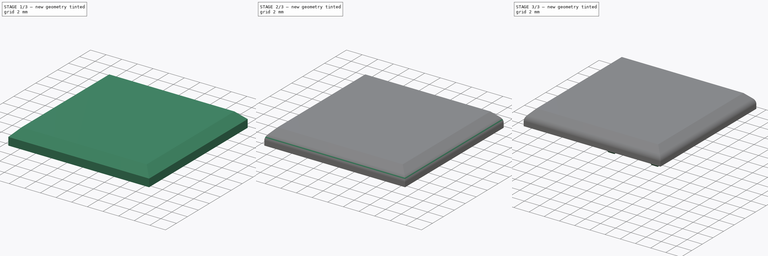
[diagram: build sequence overview — one tinted view per stage of 3, left to right]
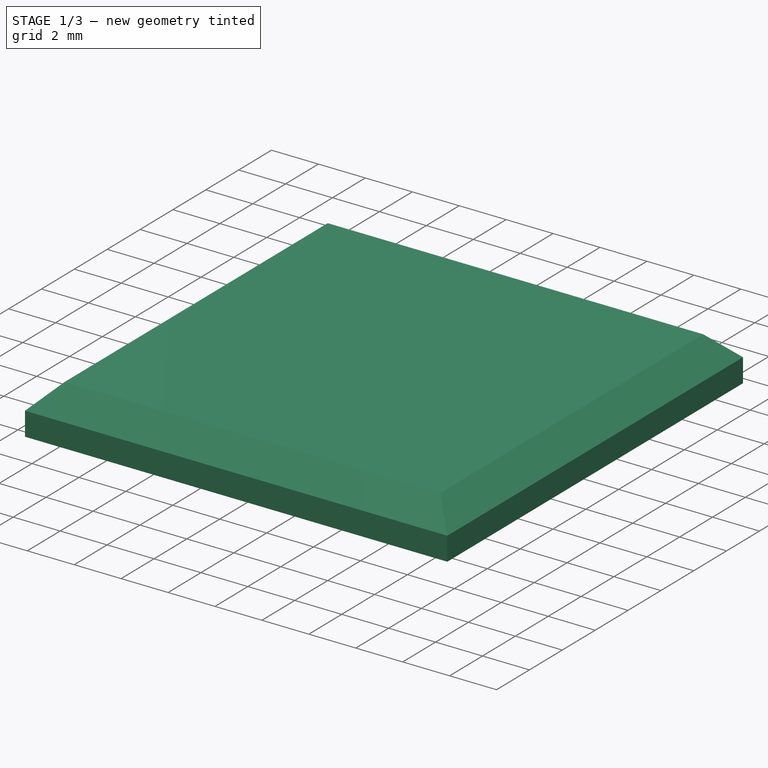
[diagram: stage 1 of 3 — iso view after this stage's code; geometry added in this stage tinted green]
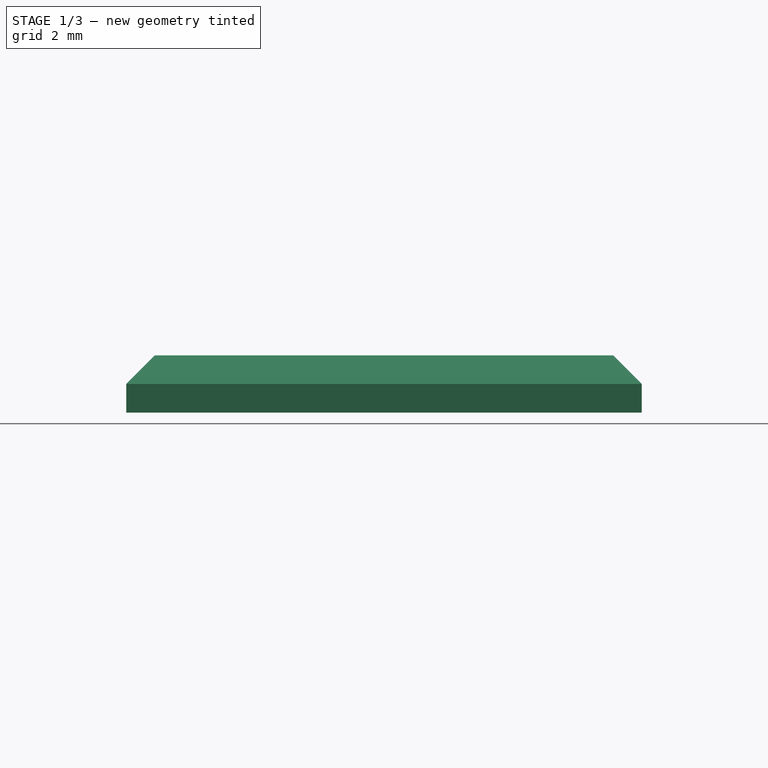
[diagram: stage 1 of 3 — front view after this stage's code; geometry added in this stage tinted green]
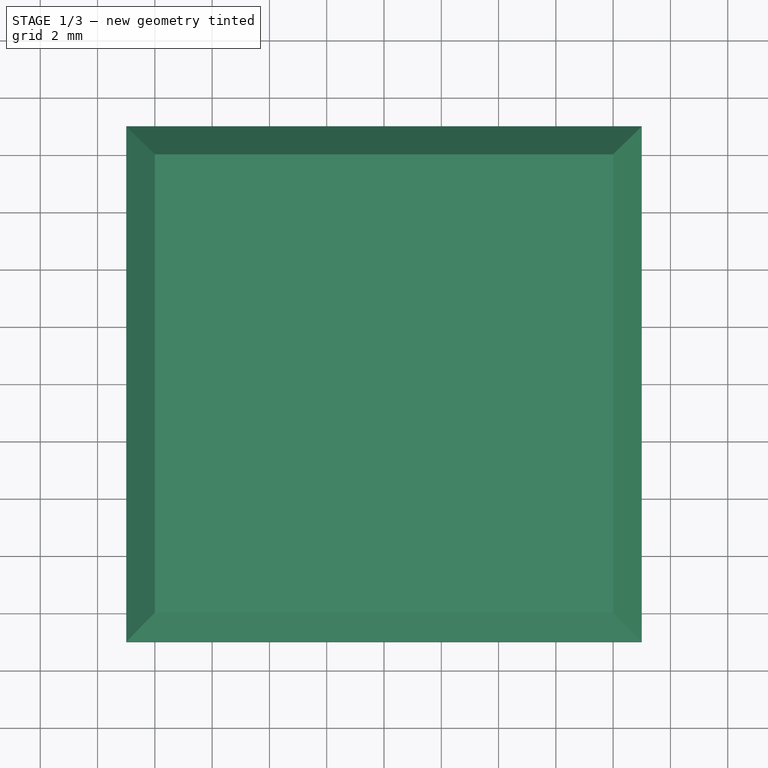
[diagram: stage 1 of 3 — top view after this stage's code; geometry added in this stage tinted green]
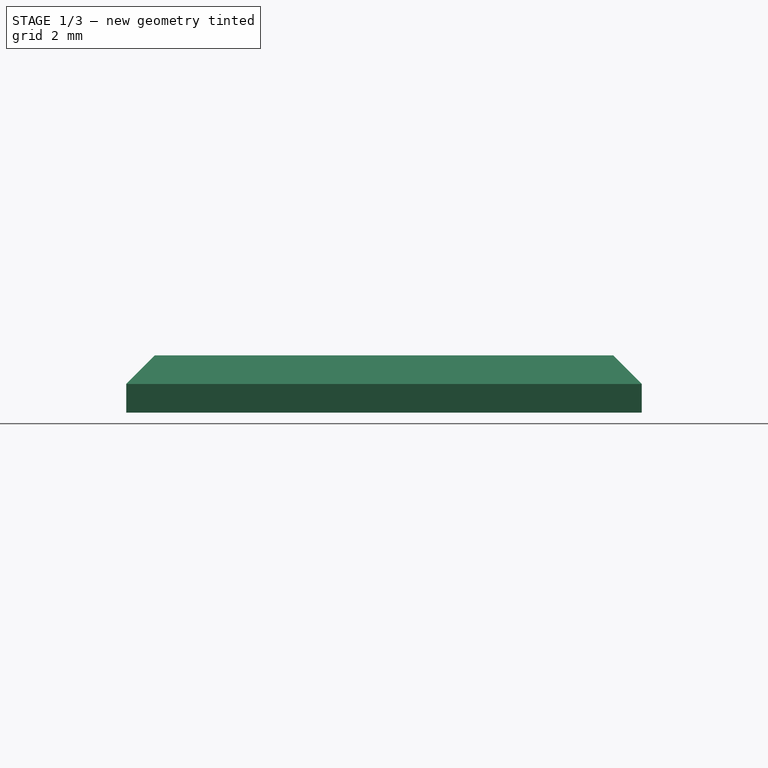
[diagram: stage 1 of 3 — right view after this stage's code; geometry added in this stage tinted green]
FCSTD DOCUMENT  (FreeCAD 0.18.4R)
Label: square-kailh-choc
License: All rights reserved
LicenseURL: http://en.wikipedia.org/wiki/All_rights_reserved
objects: Sketcher::SketchObject×2, PartDesign::Pad×2, PartDesign::Chamfer×2, PartDesign::Fillet×1, PartDesign::Body×1
note: 10 computed .brp shape members not serialized (recipe doc carries the construction recipe); baked Part::Feature solids carry a one-line shape summary decoded from their .brp

FEATURE [Sketcher::SketchObject] Sketch
  MapMode = 5
  Support = -> [XY_Plane001]
  sketch-geometry (7):
    g0: LineSegment StartX=-9 StartY=9 StartZ=0 EndX=9 EndY=9 EndZ=0
    g1: LineSegment StartX=9 StartY=9 StartZ=0 EndX=9 EndY=-9 EndZ=0
    g2: LineSegment StartX=9 StartY=-9 StartZ=0 EndX=-9 EndY=-9 EndZ=0
    g3: LineSegment StartX=-9 StartY=-9 StartZ=0 EndX=-9 EndY=9 EndZ=0
    g4: LineSegment [constr] StartX=-9 StartY=9 StartZ=0 EndX=9 EndY=-9 EndZ=0
    g5: LineSegment [constr] StartX=9 StartY=9 StartZ=0 EndX=-9 EndY=-9 EndZ=0
    g6: GeomPoint X=0 Y=0 Z=0
  constraints (17):
    c: Coincident(g0,g1)
    c: Coincident(g1,g2)
    c: Coincident(g2,g3)
    c: Coincident(g3,g0)
    c: Horizontal(g0)
    c: Horizontal(g2)
    c: Vertical(g1)
    c: Vertical(g3)
    c: Distance(g0) = 18
    c: Equal(g3,g0)
    c: Coincident(g5,g0)
    c: Coincident(g4,g0)
    c: Coincident(g5,g2)
    c: Coincident(g4,g1)
    c: PointOnObject(g6,g4)
    c: PointOnObject(g6,g5)
    c: Coincident(g6,g-1)
FEATURE [PartDesign::Pad] Pad
  Length = 2
  Length2 = 100
  Profile = -> Sketch
  Type = 0
FEATURE [PartDesign::Chamfer] Chamfer
  Base = -> Pad [Edge12,Edge4,Edge7,Edge10]
  BaseFeature = -> Pad
  Size = 1
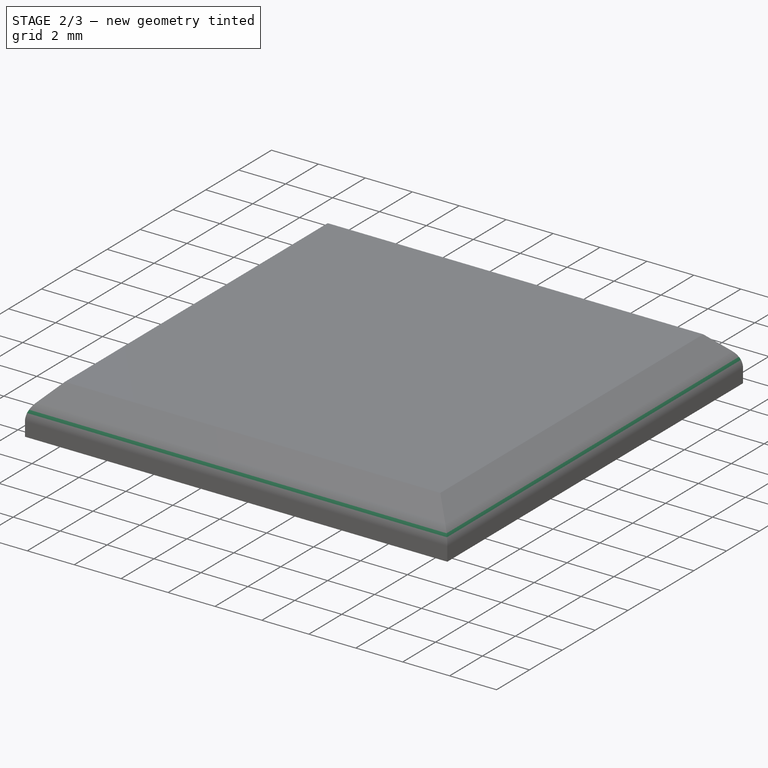
[diagram: stage 2 of 3 — iso view after this stage's code; geometry added in this stage tinted green]
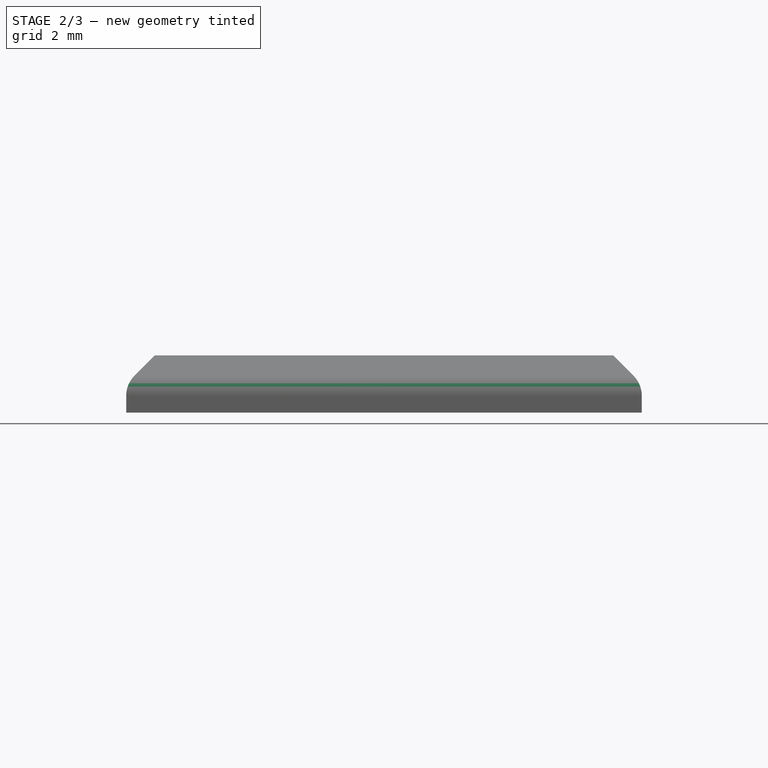
[diagram: stage 2 of 3 — front view after this stage's code; geometry added in this stage tinted green]
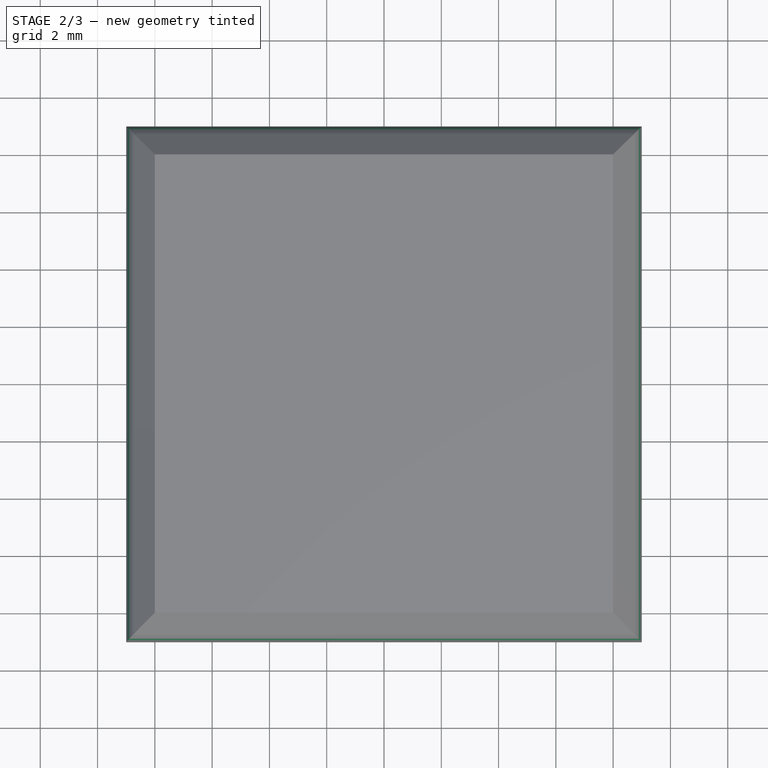
[diagram: stage 2 of 3 — top view after this stage's code; geometry added in this stage tinted green]
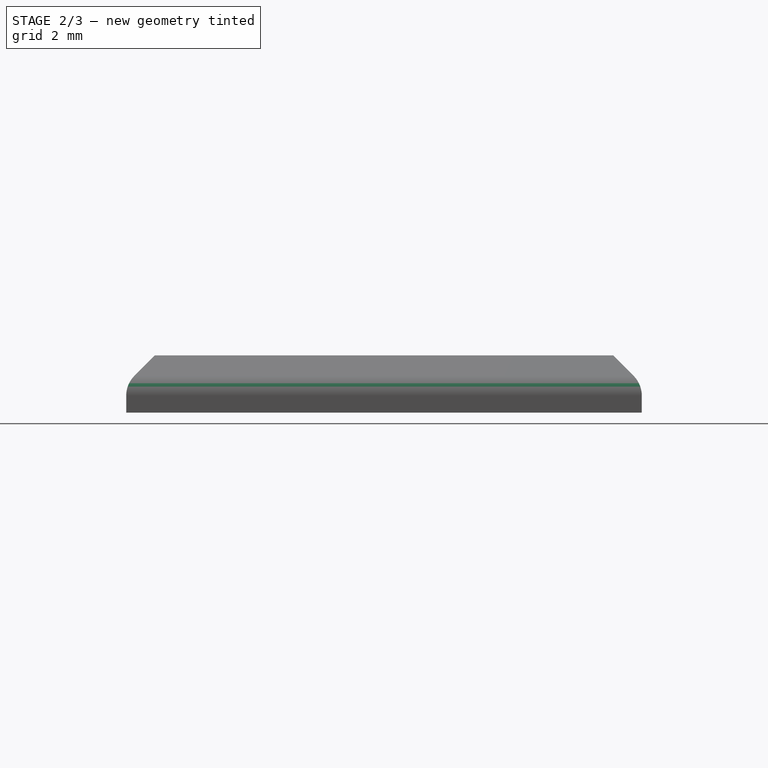
[diagram: stage 2 of 3 — right view after this stage's code; geometry added in this stage tinted green]
FEATURE [PartDesign::Fillet] Fillet
  Base = -> Chamfer [Edge15,Edge13,Edge6,Edge2]
  BaseFeature = -> Chamfer
  Radius = 1
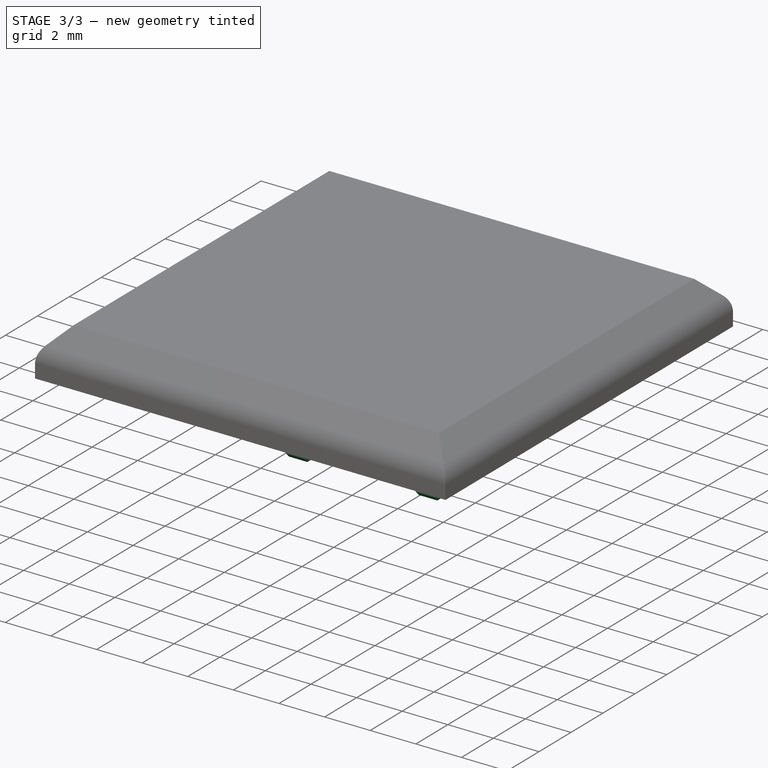
[diagram: stage 3 of 3 — iso view after this stage's code; geometry added in this stage tinted green]
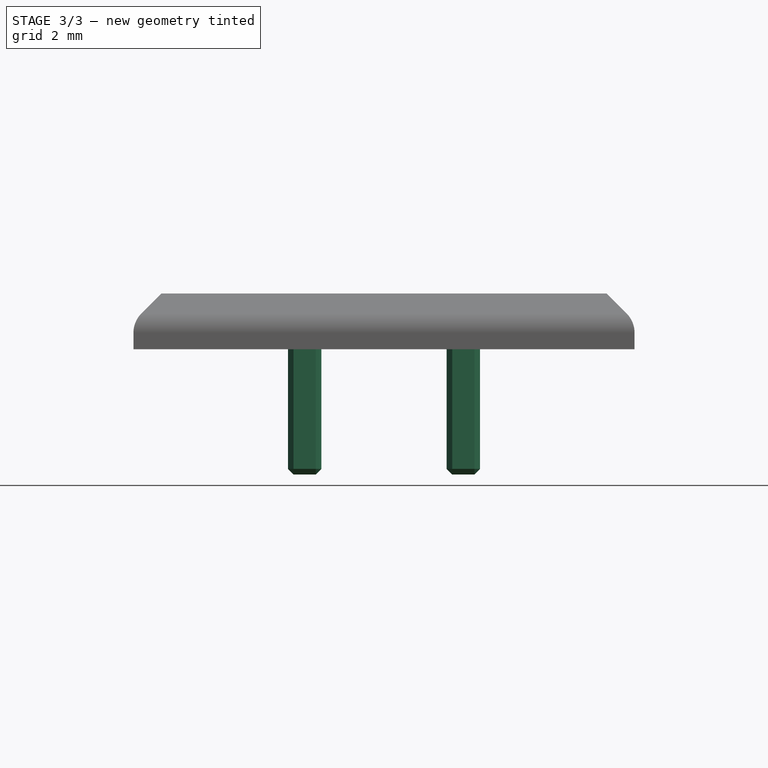
[diagram: stage 3 of 3 — front view after this stage's code; geometry added in this stage tinted green]
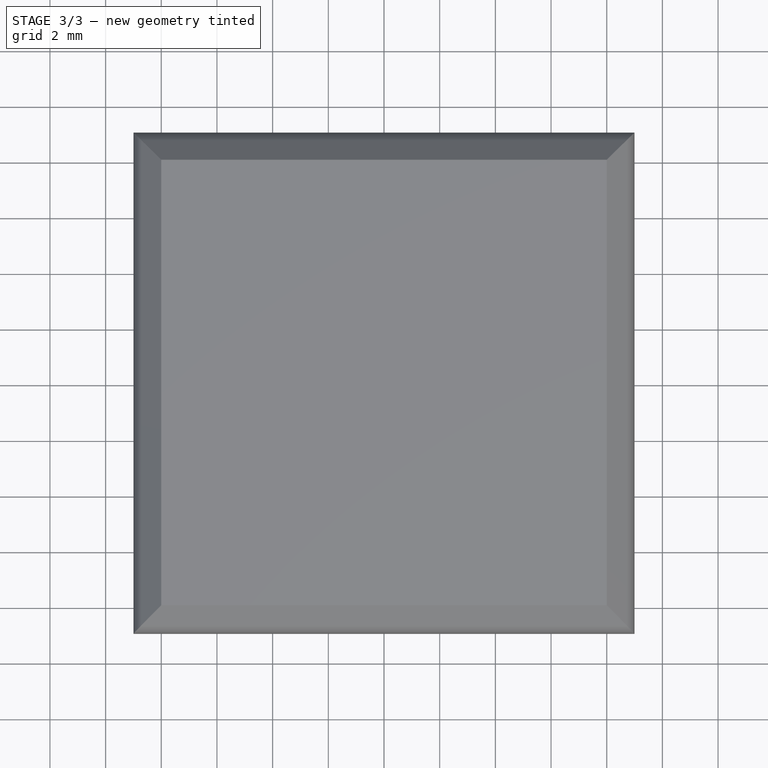
[diagram: stage 3 of 3 — top view after this stage's code; geometry added in this stage tinted green]
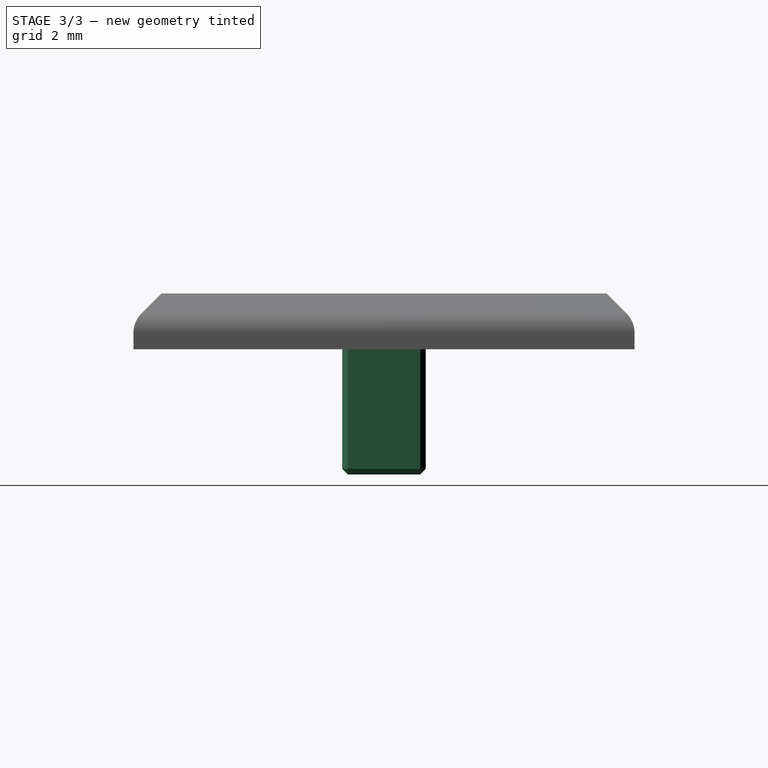
[diagram: stage 3 of 3 — right view after this stage's code; geometry added in this stage tinted green]
FEATURE [Sketcher::SketchObject] CopySketch002
  Placement = pos=(0,0,0) rot=(1,0,0;3.14159rad)
  sketch-geometry (14):
    g0: LineSegment StartX=-3.45 StartY=1.5 StartZ=0 EndX=-2.25 EndY=1.5 EndZ=0
    g1: LineSegment StartX=-2.25 StartY=1.5 StartZ=0 EndX=-2.25 EndY=-1.5 EndZ=0
    g2: LineSegment StartX=-2.25 StartY=-1.5 StartZ=0 EndX=-3.45 EndY=-1.5 EndZ=0
    g3: LineSegment StartX=-3.45 StartY=-1.5 StartZ=0 EndX=-3.45 EndY=1.5 EndZ=0
    g4: LineSegment StartX=2.25 StartY=1.5 StartZ=0 EndX=3.45 EndY=1.5 EndZ=0
    g5: LineSegment StartX=3.45 StartY=1.5 StartZ=0 EndX=3.45 EndY=-1.5 EndZ=0
    g6: LineSegment StartX=3.45 StartY=-1.5 StartZ=0 EndX=2.25 EndY=-1.5 EndZ=0
    g7: LineSegment StartX=2.25 StartY=-1.5 StartZ=0 EndX=2.25 EndY=1.5 EndZ=0
    g8: LineSegment [constr] StartX=-3.45 StartY=1.5 StartZ=0 EndX=-3.45 EndY=0 EndZ=0
    g9: LineSegment [constr] StartX=-3.45 StartY=0 StartZ=0 EndX=-3.45 EndY=-1.5 EndZ=0
    g10: LineSegment [constr] StartX=3.45 StartY=1.5 StartZ=0 EndX=3.45 EndY=0 EndZ=0
    g11: LineSegment [constr] StartX=3.45 StartY=0 StartZ=0 EndX=3.45 EndY=-1.5 EndZ=0
    g12: LineSegment [constr] StartX=-3.45 StartY=0 StartZ=0 EndX=0 EndY=0 EndZ=0
    g13: LineSegment [constr] StartX=0 StartY=0 StartZ=0 EndX=3.45 EndY=0 EndZ=0
  constraints (38):
    c: Coincident(g0,g1)
    c: Coincident(g1,g2)
    c: Coincident(g2,g3)
    c: Coincident(g3,g0)
    c: Horizontal(g0)
    c: Horizontal(g2)
    c: Vertical(g1)
    c: Vertical(g3)
    c: Coincident(g4,g5)
    c: Coincident(g5,g6)
    c: Coincident(g6,g7)
    c: Coincident(g7,g4)
    c: Horizontal(g4)
    c: Horizontal(g6)
    c: Vertical(g5)
    c: Vertical(g7)
    c: Distance(g0) = 1.2
    c: Distance(g1) = 3
    c: Distance(g4) = 1.2
    c: Distance(g7) = 3
    c: Coincident(g8,g0)
    c: Coincident(g8,g9)
    c: Coincident(g9,g2)
    c: Equal(g9,g8)
    c: Vertical(g9)
    c: Coincident(g10,g4)
    c: Coincident(g10,g11)
    c: Coincident(g11,g5)
    c: Equal(g11,g10)
    c: Vertical(g10)
    c: Coincident(g13,g10)
    c: Coincident(g13,g12)
    c: Coincident(g12,g8)
    c: Equal(g12,g13)
    c: Horizontal(g12)
    c: Horizontal(g13)
    c: Coincident(g12,g-1)
    c: Distance(g12) = 3.45
FEATURE [PartDesign::Pad] Pad001
  BaseFeature = -> Fillet
  Length = 4.5
  Length2 = 100
  Profile = -> CopySketch002
  Type = 0
FEATURE [PartDesign::Chamfer] Chamfer001
  Base = -> Pad001 [Edge43,Edge41,Edge46,Edge45,Edge39,Edge42,Edge40,Edge44,Edge38,Edge33,Edge35,Edge37,Edge36,Edge32,Edge31,Edge34]
  BaseFeature = -> Pad001
  Size = 0.2
FEATURE [PartDesign::Body] Body
  Group = -> [Sketch,Pad,Chamfer,Fillet,Pad001,Chamfer001]
  Origin = -> Origin001
  Tip = -> Chamfer001
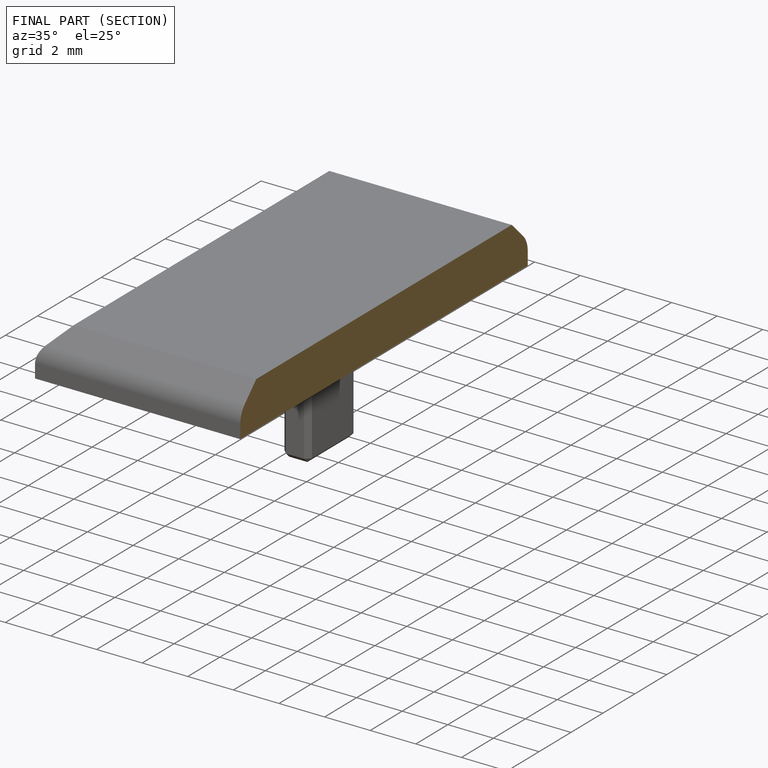
[diagram: finished part — half-section view (interior)]
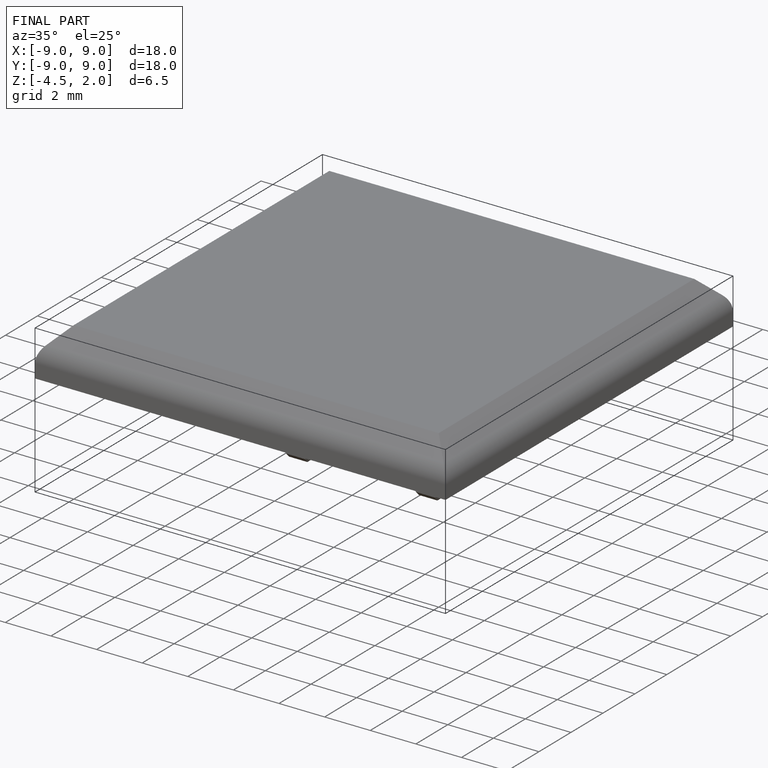
[diagram: finished part — iso view with bounding-box wireframe]
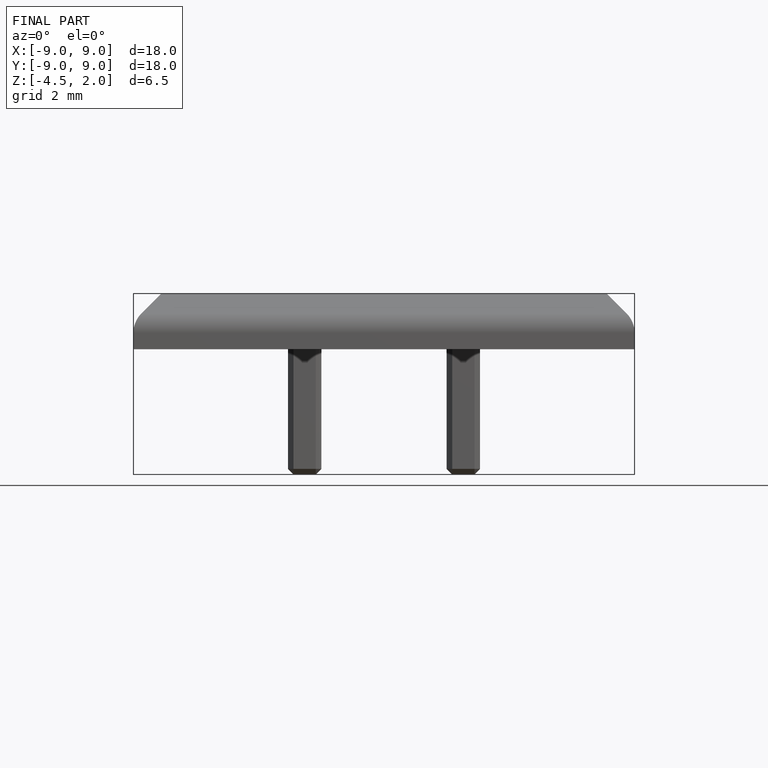
[diagram: finished part — front view with bounding-box wireframe]
